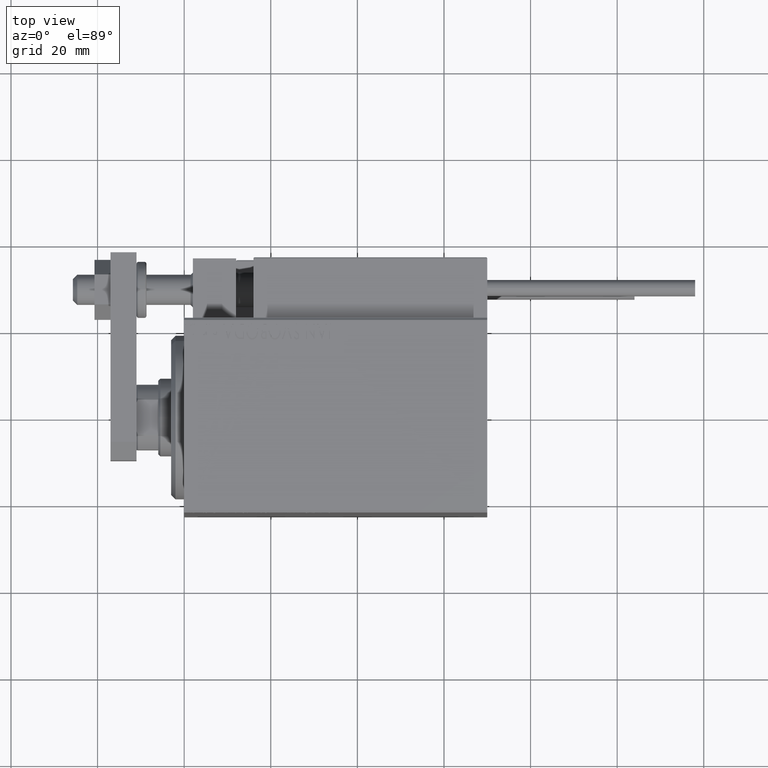
[diagram: clean part render]
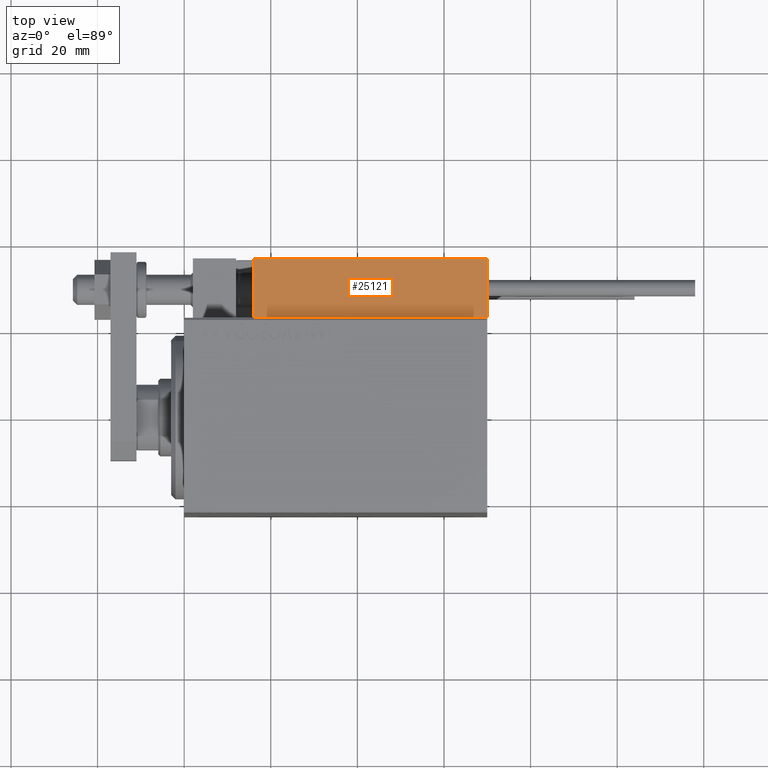
[diagram: same view with one face highlighted and labeled with its STEP entity id]
A machine part, top view. The second image highlights one B-rep face of the part: STEP entity #25121.
In plain terms, the highlighted planar face has unit normal (-0, -0, -1).
Its self-contained STEP definition (entity closure, byte-faithful):
#2925 = DIRECTION ( 'NONE',  ( -0.000000000000000000, -0.000000000000000000, -1.000000000000000000 ) ) ;
#3047 = VECTOR ( 'NONE', #9071, 1000.000000000000000 ) ;
#3372 = FACE_OUTER_BOUND ( 'NONE', #47616, .T. ) ;
#5404 = EDGE_CURVE ( 'NONE', #41206, #28423, #45429, .T. ) ;
#6742 = LINE ( 'NONE', #9808, #38865 ) ;
#6931 = CARTESIAN_POINT ( 'NONE',  ( 27.00000000000006395, 20.00000000000001776, 14.00000000000000000 ) ) ;
#8221 = ORIENTED_EDGE ( 'NONE', *, *, #5404, .T. ) ;
#8554 = LINE ( 'NONE', #20205, #3047 ) ;
#9071 = DIRECTION ( 'NONE',  ( 1.000000000000000000, -6.424901762877063495E-17, -0.000000000000000000 ) ) ;
#9808 = CARTESIAN_POINT ( 'NONE',  ( 27.00000000000006395, 20.00000000000001776, 14.00000000000000000 ) ) ;
#11464 = VERTEX_POINT ( 'NONE', #25034 ) ;
#15071 = DIRECTION ( 'NONE',  ( -0.000000000000000000, -0.000000000000000000, -1.000000000000000000 ) ) ;
#18831 = PLANE ( 'NONE',  #38500 ) ;
#19121 = CARTESIAN_POINT ( 'NONE',  ( -26.99999999999993605, 20.00000000000002132, 14.00000000000000000 ) ) ;
#20205 = CARTESIAN_POINT ( 'NONE',  ( 27.00000000000006395, 20.00000000000001776, 13.70000000000000107 ) ) ;
#21497 = VERTEX_POINT ( 'NONE', #24501 ) ;
#22383 = DIRECTION ( 'NONE',  ( 1.000000000000000000, -6.424901762877063495E-17, 0.000000000000000000 ) ) ;
#24501 = CARTESIAN_POINT ( 'NONE',  ( 27.00000000000006395, 20.00000000000001776, 13.70000000000000107 ) ) ;
#25034 = CARTESIAN_POINT ( 'NONE',  ( -26.99999999999993605, 20.00000000000002132, 13.70000000000000107 ) ) ;
#25121 = ADVANCED_FACE ( 'NONE', ( #3372 ), #18831, .F. ) ;
#25906 = DIRECTION ( 'NONE',  ( -1.000000000000000000, 6.424901762877062263E-17, 0.000000000000000000 ) ) ;
#26888 = CARTESIAN_POINT ( 'NONE',  ( 27.00000000000006395, 20.00000000000001776, 0.000000000000000000 ) ) ;
#27675 = EDGE_CURVE ( 'NONE', #11464, #28423, #34836, .T. ) ;
#28423 = VERTEX_POINT ( 'NONE', #30660 ) ;
#30660 = CARTESIAN_POINT ( 'NONE',  ( -26.99999999999993605, 20.00000000000002132, 0.000000000000000000 ) ) ;
#32120 = CARTESIAN_POINT ( 'NONE',  ( 27.00000000000006395, 20.00000000000001776, 0.000000000000000000 ) ) ;
#34836 = LINE ( 'NONE', #19121, #43475 ) ;
#36795 = ORIENTED_EDGE ( 'NONE', *, *, #39561, .T. ) ;
#36998 = VECTOR ( 'NONE', #25906, 1000.000000000000000 ) ;
#38500 = AXIS2_PLACEMENT_3D ( 'NONE', #6931, #45954, #22383 ) ;
#38865 = VECTOR ( 'NONE', #2925, 1000.000000000000000 ) ;
#39561 = EDGE_CURVE ( 'NONE', #21497, #41206, #6742, .T. ) ;
#41206 = VERTEX_POINT ( 'NONE', #32120 ) ;
#43475 = VECTOR ( 'NONE', #15071, 1000.000000000000000 ) ;
#45429 = LINE ( 'NONE', #26888, #36998 ) ;
#45954 = DIRECTION ( 'NONE',  ( -6.424901762877063495E-17, -1.000000000000000000, 0.000000000000000000 ) ) ;
#47616 = EDGE_LOOP ( 'NONE', ( #49314, #49325, #36795, #8221 ) ) ;
#48390 = EDGE_CURVE ( 'NONE', #11464, #21497, #8554, .T. ) ;
#49314 = ORIENTED_EDGE ( 'NONE', *, *, #27675, .F. ) ;
#49325 = ORIENTED_EDGE ( 'NONE', *, *, #48390, .T. ) ;